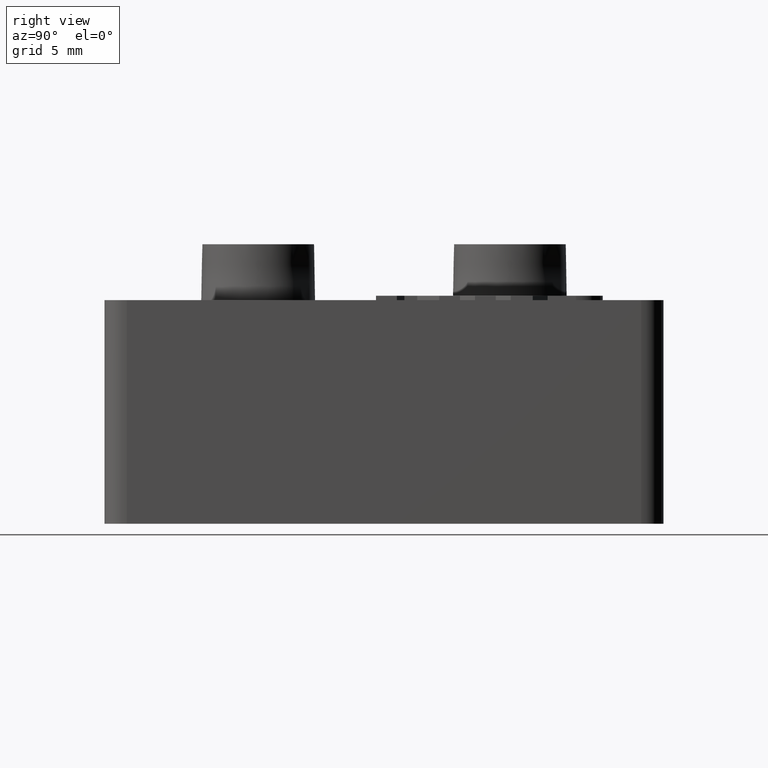
[diagram: clean part render]
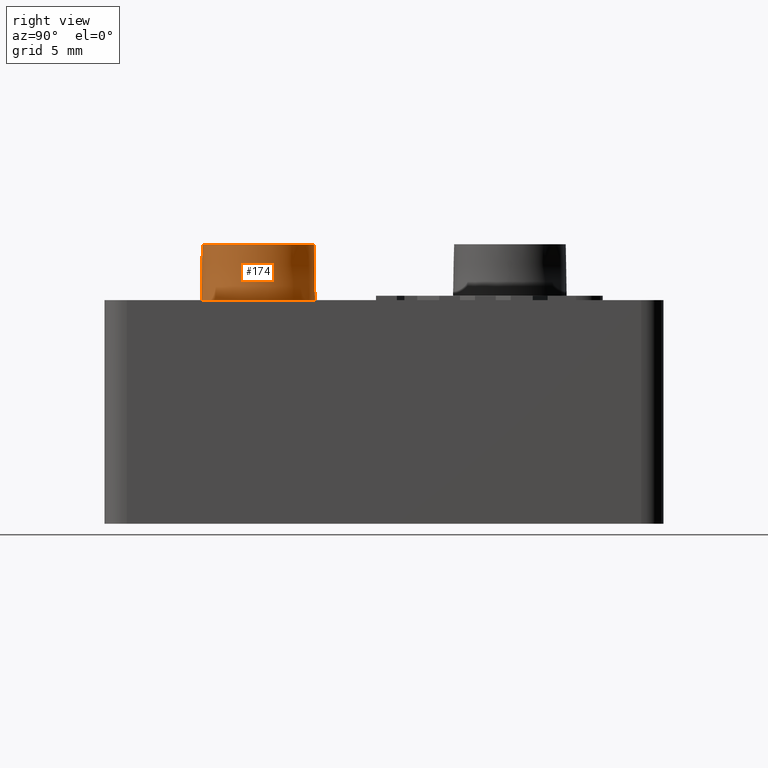
[diagram: same view with one face highlighted and labeled with its STEP entity id]
A machine part, right view. The second image highlights one B-rep face of the part: STEP entity #174.
In plain terms, the highlighted conical surface has half-angle 1 deg.
Its self-contained STEP definition (entity closure, byte-faithful):
#174 = ADVANCED_FACE( '', ( #427, #428 ), #429, .T. );
#427 = FACE_OUTER_BOUND( '', #713, .T. );
#428 = FACE_BOUND( '', #714, .T. );
#429 = CONICAL_SURFACE( '', #715, 2.50000000000000, 0.0174532925199433 );
#713 = EDGE_LOOP( '', ( #1598 ) );
#714 = EDGE_LOOP( '', ( #1599 ) );
#715 = AXIS2_PLACEMENT_3D( '', #1600, #1601, #1602 );
#1598 = ORIENTED_EDGE( '', *, *, #1934, .F. );
#1599 = ORIENTED_EDGE( '', *, *, #2108, .T. );
#1600 = CARTESIAN_POINT( '', ( 3.25000000000000, -5.62916512459885, 12.5000000000000 ) );
#1601 = DIRECTION( '', ( 0.000000000000000, -6.12303176911189E-017, -1.00000000000000 ) );
#1602 = DIRECTION( '', ( 0.000000000000000, 1.00000000000000, -6.12303176911189E-017 ) );
#1934 = EDGE_CURVE( '', #2362, #2362, #2363, .T. );
#2108 = EDGE_CURVE( '', #2630, #2630, #2631, .T. );
#2362 = VERTEX_POINT( '', #3003 );
#2363 = CIRCLE( '', #3004, 2.54363766232054 );
#2630 = VERTEX_POINT( '', #3441 );
#2631 = CIRCLE( '', #3442, 2.50000000000000 );
#3003 = CARTESIAN_POINT( '', ( 3.25000000000000, -3.08552746227830, 10.0000000000000 ) );
#3004 = AXIS2_PLACEMENT_3D( '', #3688, #3689, #3690 );
#3441 = CARTESIAN_POINT( '', ( 5.75000000000000, -5.62916512459885, 12.5000000000000 ) );
#3442 = AXIS2_PLACEMENT_3D( '', #3870, #3871, #3872 );
#3688 = CARTESIAN_POINT( '', ( 3.25000000000000, -5.62916512459885, 10.0000000000000 ) );
#3689 = DIRECTION( '', ( 0.000000000000000, -6.12303176911189E-017, -1.00000000000000 ) );
#3690 = DIRECTION( '', ( 0.000000000000000, 1.00000000000000, -6.12303176911189E-017 ) );
#3870 = CARTESIAN_POINT( '', ( 3.25000000000000, -5.62916512459885, 12.5000000000000 ) );
#3871 = DIRECTION( '', ( 0.000000000000000, -6.12303176911189E-017, -1.00000000000000 ) );
#3872 = DIRECTION( '', ( 1.00000000000000, 0.000000000000000, 0.000000000000000 ) );